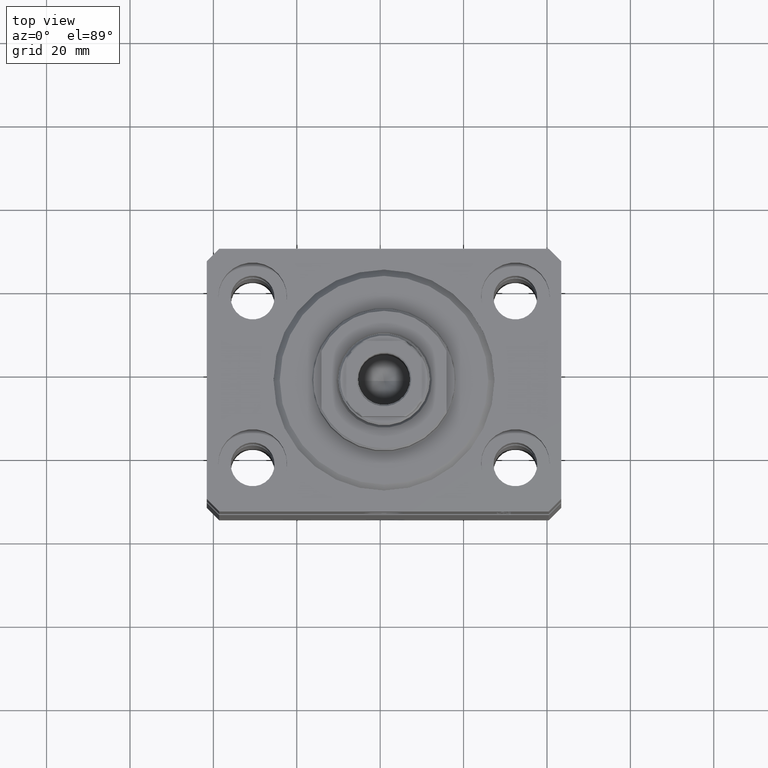
[diagram: clean part render]
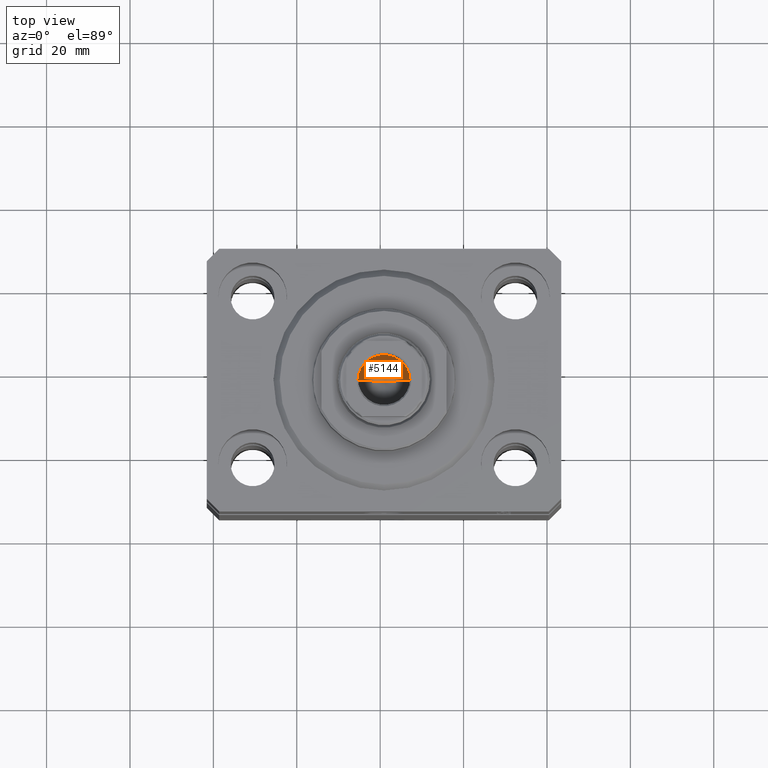
[diagram: same view with one face highlighted and labeled with its STEP entity id]
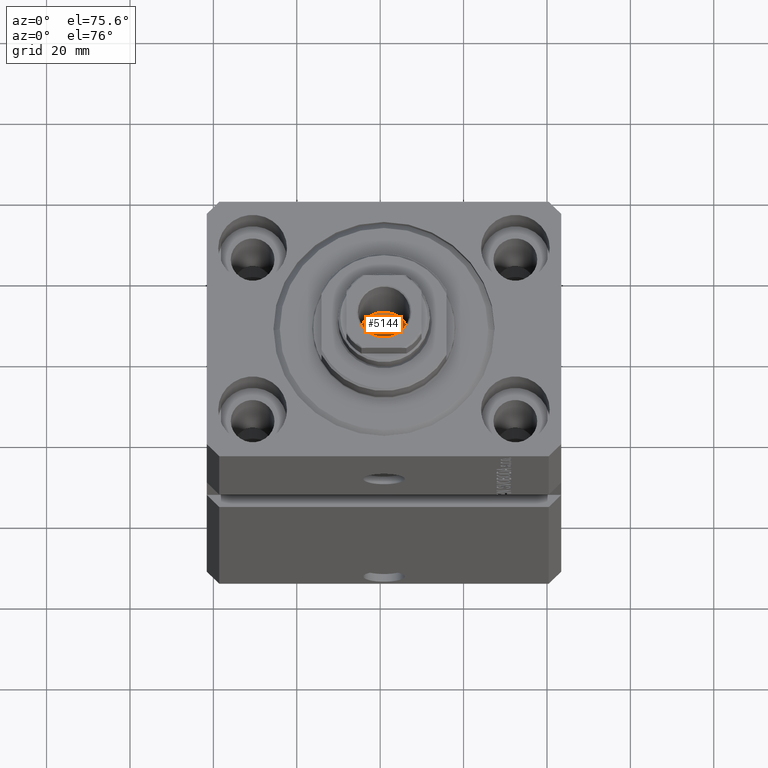
[diagram: same view with one face highlighted and labeled with its STEP entity id]
A machine part, top view. The second image highlights one B-rep face of the part: STEP entity #5144.
A second angle (auxiliary view) of the same face is appended — the face is thin or edge-on in the first view.
In plain terms, the highlighted conical surface has half-angle 59 deg.
Its self-contained STEP definition (entity closure, byte-faithful):
#2295 = EDGE_CURVE ( 'NONE', #7057, #29955, #20963, .T. ) ;
#2641 = ORIENTED_EDGE ( 'NONE', *, *, #30157, .T. ) ;
#2888 = CARTESIAN_POINT ( 'NONE',  ( 6.249999999999993783, 0.000000000000000000, 103.5000000000000142 ) ) ;
#3026 = ORIENTED_EDGE ( 'NONE', *, *, #2295, .F. ) ;
#5144 = ADVANCED_FACE ( 'NONE', ( #32765 ), #9512, .F. ) ;
#5473 = VERTEX_POINT ( 'NONE', #11850 ) ;
#5827 = EDGE_CURVE ( 'NONE', #7057, #5473, #34174, .T. ) ;
#6628 = VECTOR ( 'NONE', #33956, 1000.000000000000000 ) ;
#7057 = VERTEX_POINT ( 'NONE', #8925 ) ;
#7108 = ORIENTED_EDGE ( 'NONE', *, *, #5827, .T. ) ;
#8925 = CARTESIAN_POINT ( 'NONE',  ( -7.434177670704979810E-15, 0.000000000000000000, 99.74462113107774996 ) ) ;
#9512 = CONICAL_SURFACE ( 'NONE', #19630, 6.249999999999993783, 1.029744258676652979 ) ;
#11850 = CARTESIAN_POINT ( 'NONE',  ( 6.249999999999993783, 0.000000000000000000, 103.5000000000000142 ) ) ;
#18159 = DIRECTION ( 'NONE',  ( -0.000000000000000000, -0.000000000000000000, 1.000000000000000000 ) ) ;
#19630 = AXIS2_PLACEMENT_3D ( 'NONE', #22549, #32099, #32320 ) ;
#20963 = LINE ( 'NONE', #21409, #36096 ) ;
#21409 = CARTESIAN_POINT ( 'NONE',  ( -6.249999999999993783, 7.654042494670949718E-16, 103.5000000000000142 ) ) ;
#21567 = CARTESIAN_POINT ( 'NONE',  ( 0.000000000000000000, 0.000000000000000000, 103.5000000000000142 ) ) ;
#22549 = CARTESIAN_POINT ( 'NONE',  ( 0.000000000000000000, 0.000000000000000000, 103.5000000000000142 ) ) ;
#23176 = CARTESIAN_POINT ( 'NONE',  ( -6.249999999999993783, 7.654042494670949718E-16, 103.5000000000000142 ) ) ;
#29955 = VERTEX_POINT ( 'NONE', #23176 ) ;
#30157 = EDGE_CURVE ( 'NONE', #5473, #29955, #38307, .T. ) ;
#32099 = DIRECTION ( 'NONE',  ( -0.000000000000000000, -0.000000000000000000, 1.000000000000000000 ) ) ;
#32320 = DIRECTION ( 'NONE',  ( 1.000000000000000000, 0.000000000000000000, 0.000000000000000000 ) ) ;
#32765 = FACE_OUTER_BOUND ( 'NONE', #43370, .T. ) ;
#33956 = DIRECTION ( 'NONE',  ( 0.8571673007021115565, 0.000000000000000000, 0.5150380749100554878 ) ) ;
#34174 = LINE ( 'NONE', #2888, #6628 ) ;
#34803 = DIRECTION ( 'NONE',  ( -0.8571673007021115565, 1.049727191138617710E-16, 0.5150380749100554878 ) ) ;
#36096 = VECTOR ( 'NONE', #34803, 1000.000000000000000 ) ;
#36122 = AXIS2_PLACEMENT_3D ( 'NONE', #21567, #18159, #42408 ) ;
#38307 = CIRCLE ( 'NONE', #36122, 6.249999999999993783 ) ;
#42408 = DIRECTION ( 'NONE',  ( 1.000000000000000000, 0.000000000000000000, 0.000000000000000000 ) ) ;
#43370 = EDGE_LOOP ( 'NONE', ( #3026, #7108, #2641 ) ) ;